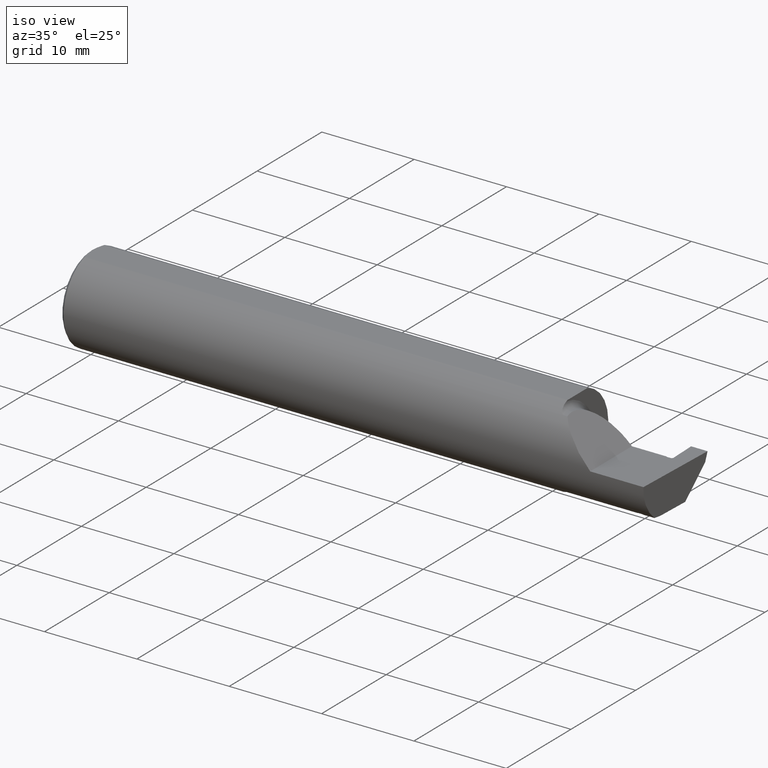
[diagram: clean part render]
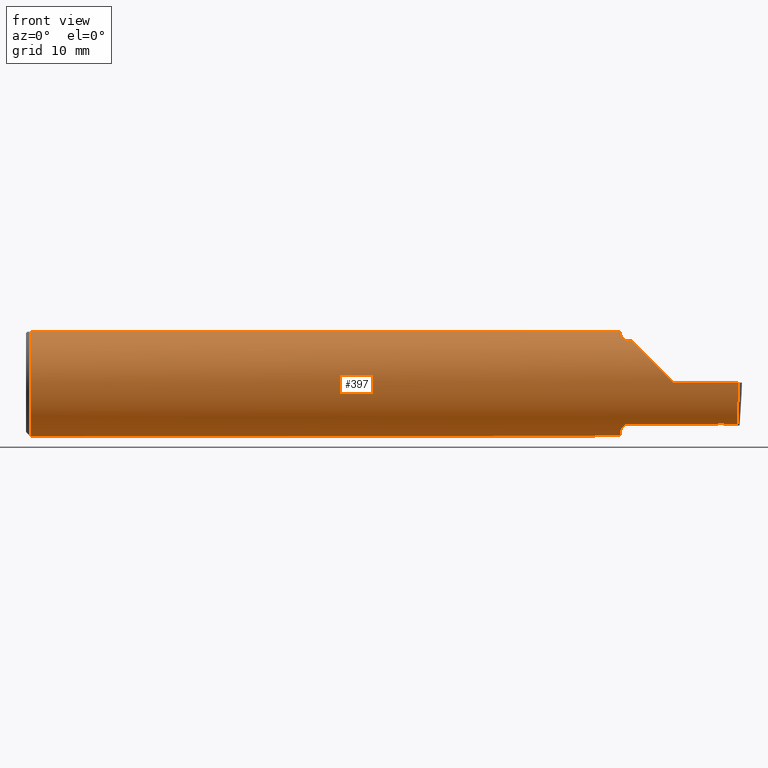
[diagram: tour spotlight — one face highlighted and labeled with its STEP entity id]
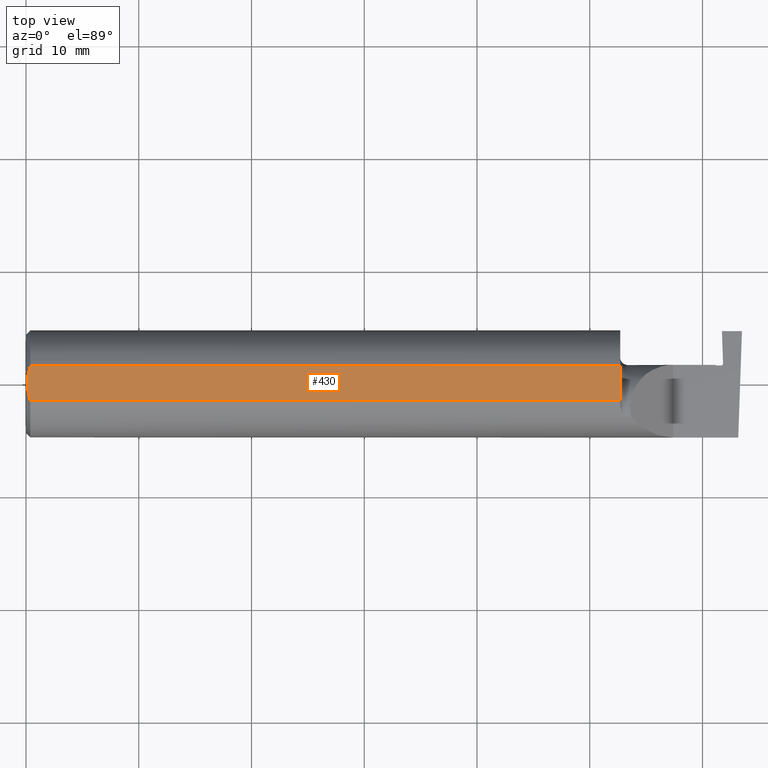
[diagram: tour spotlight — one face highlighted and labeled with its STEP entity id]
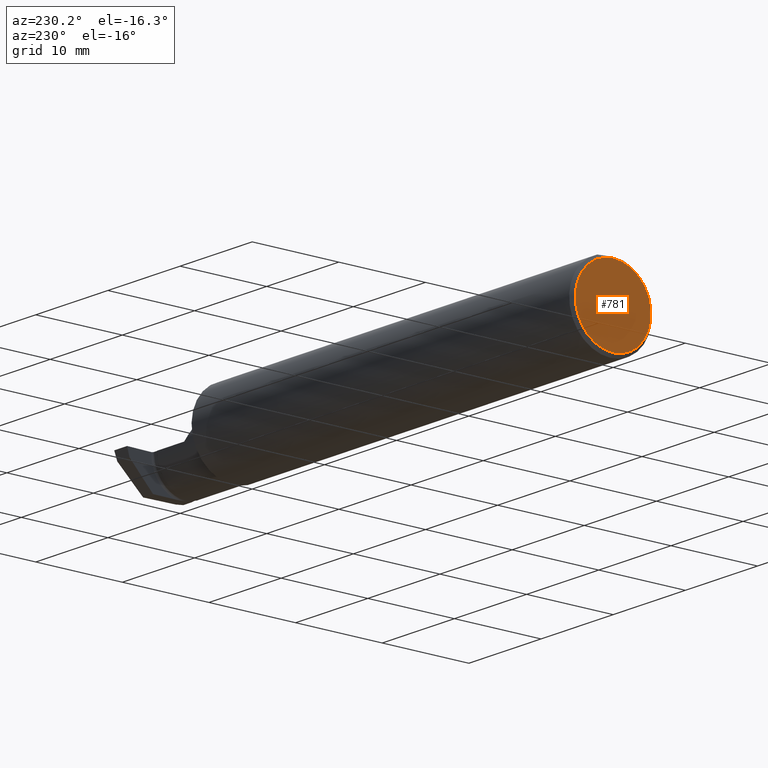
[diagram: tour spotlight — one face highlighted and labeled with its STEP entity id]
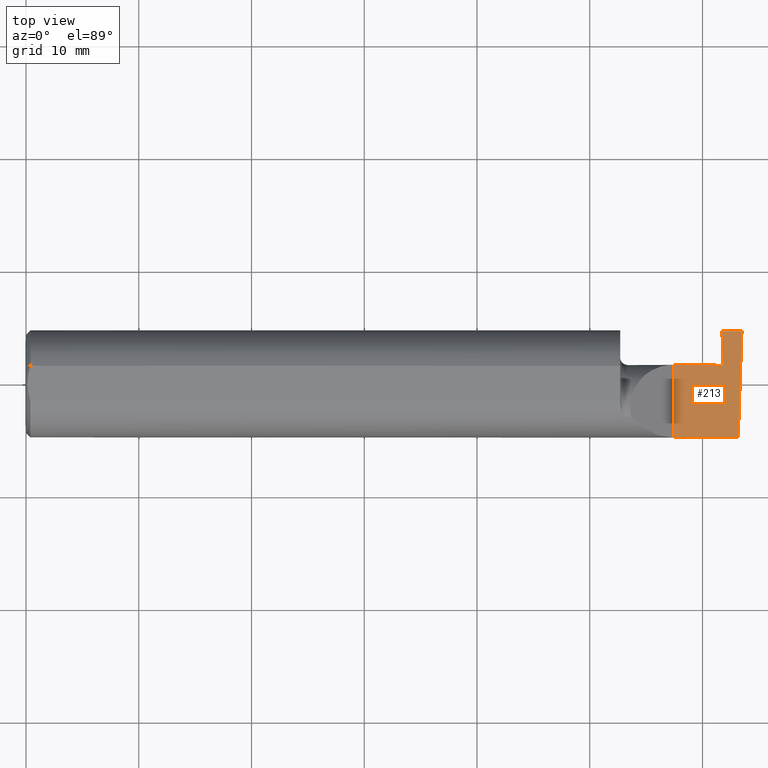
[diagram: tour spotlight — one face highlighted and labeled with its STEP entity id]
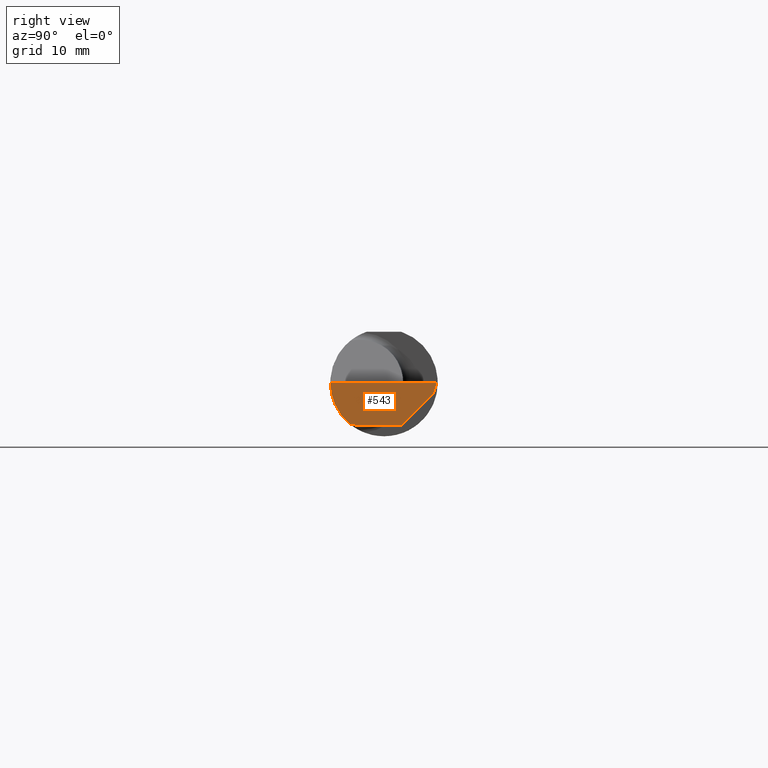
[diagram: tour spotlight — one face highlighted and labeled with its STEP entity id]
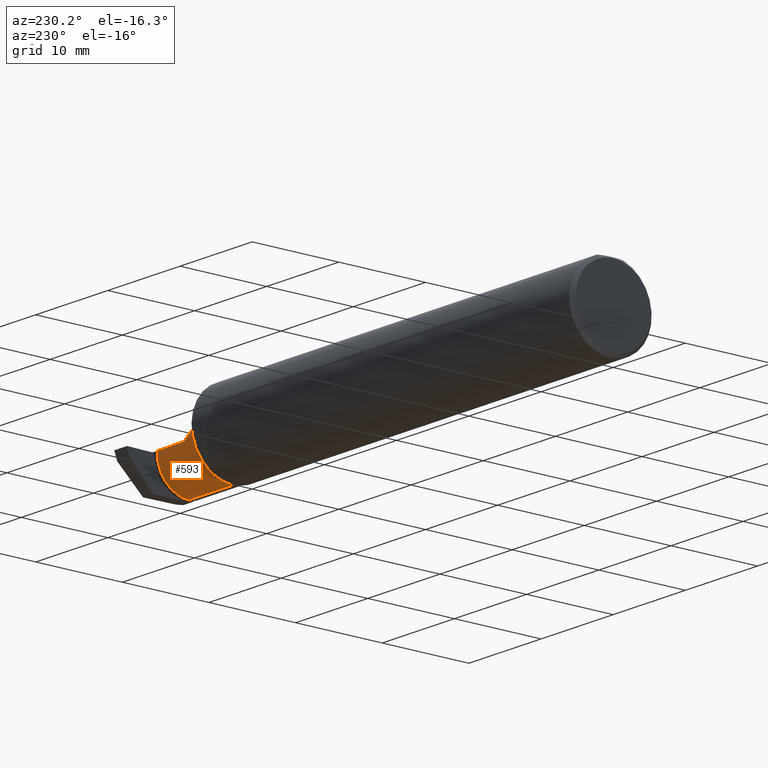
[diagram: tour spotlight — one face highlighted and labeled with its STEP entity id]
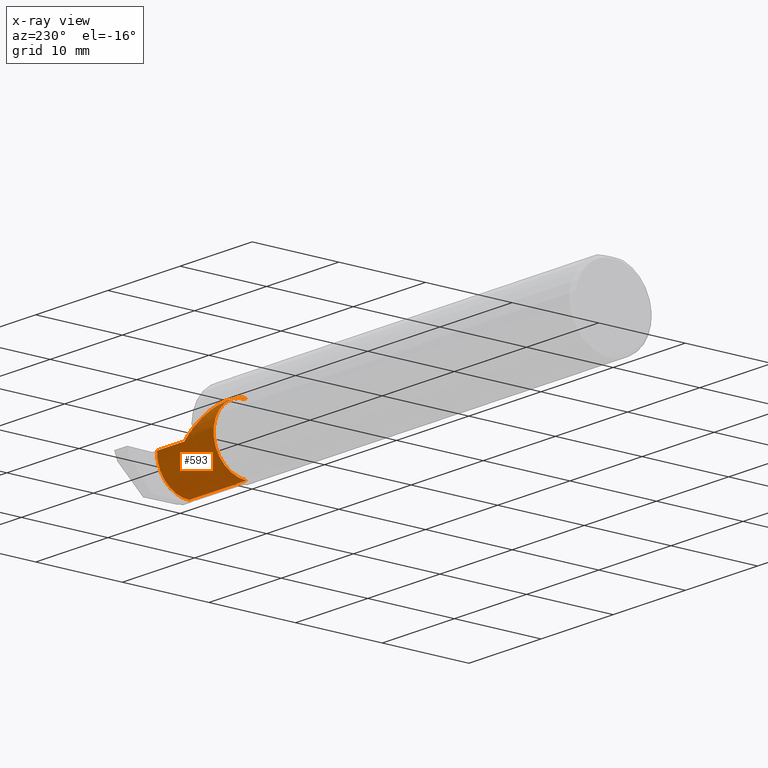
[diagram: x-ray of the same camera — body ghosted, this tour face saturated]
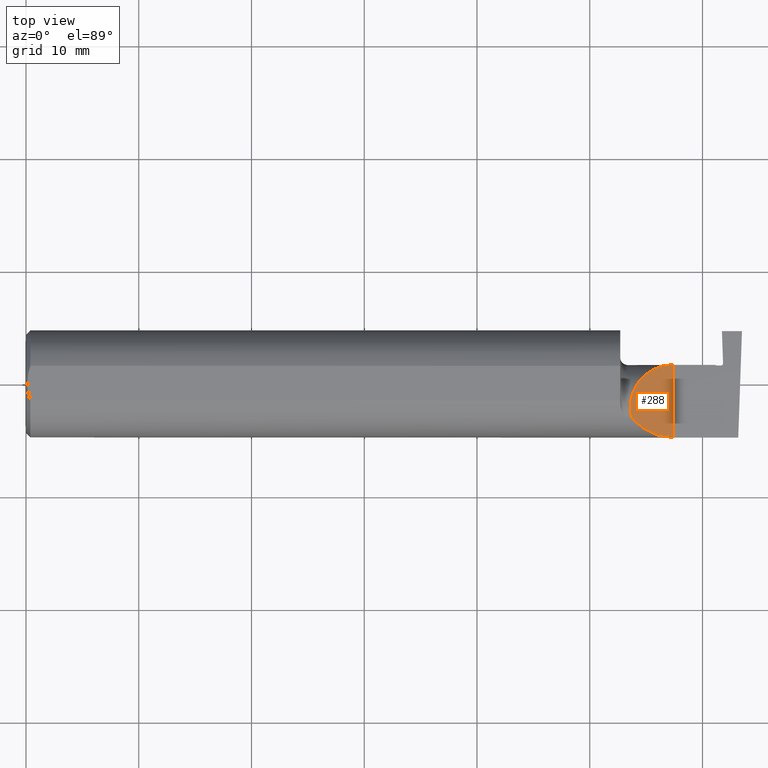
[diagram: tour spotlight — one face highlighted and labeled with its STEP entity id]
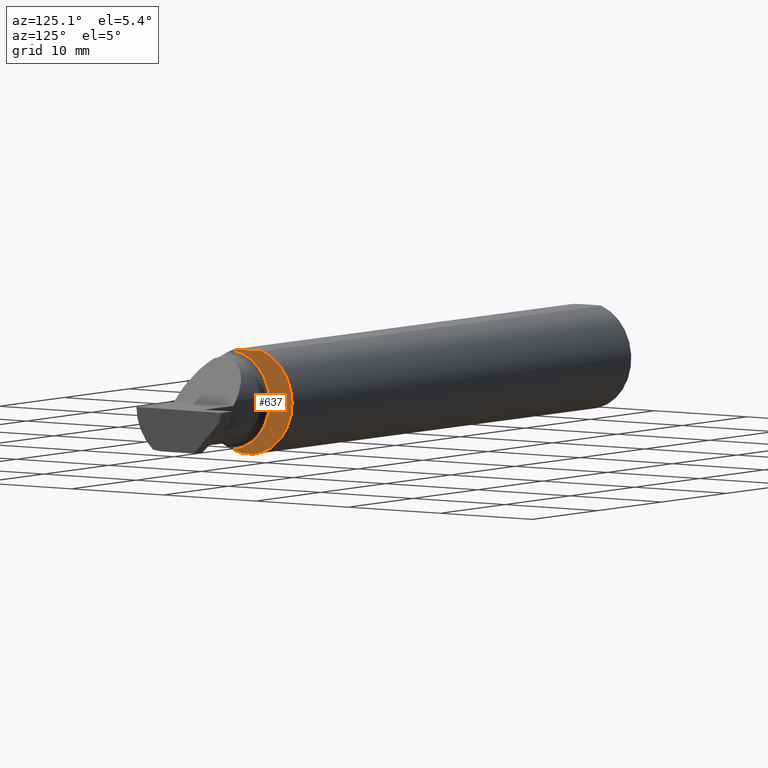
[diagram: tour spotlight — one face highlighted and labeled with its STEP entity id]
A machine part: a face-by-face anatomy tour. The part has 23 B-rep faces; the first image is the clean iso view, then the 8 largest visible faces are spotlighted one at a time (largest first), each with its STEP entity span.

Face 1 — front view, entity #397. In plain terms, the highlighted cylindrical surface (partial cylindrical patch) has radius 4.7587 mm, axis along (-1, -0, -0).
Definition (entity closure, byte-faithful):
#4 = CARTESIAN_POINT ( 'NONE',  ( 2.415025643755632334, -0.1199513252084595388, -0.1439156074952760989 ) ) ;
#10 = CARTESIAN_POINT ( 'NONE',  ( 2.086319809340846820, -0.1102629523538395662, 0.1514982751257170079 ) ) ;
#17 = ORIENTED_EDGE ( 'NONE', *, *, #347, .T. ) ;
#24 = ORIENTED_EDGE ( 'NONE', *, *, #581, .F. ) ;
#25 = CARTESIAN_POINT ( 'NONE',  ( 2.414567480718159853, -0.1190606946498137392, -0.1446579336240403357 ) ) ;
#39 = B_SPLINE_CURVE_WITH_KNOTS ( 'NONE', 3,
 ( #339, #425, #998, #661 ),
 .UNSPECIFIED., .F., .F.,
 ( 4, 4 ),
 ( 4.423516731080786679E-05, 0.0004561457252213464405 ),
 .UNSPECIFIED. ) ;
#51 = VERTEX_POINT ( 'NONE', #137 ) ;
#57 = EDGE_CURVE ( 'NONE', #225, #591, #386, .T. ) ;
#62 = CARTESIAN_POINT ( 'NONE',  ( 2.419253572807317454, -0.1202068112934516347, -0.1437023751129178628 ) ) ;
#65 = CARTESIAN_POINT ( 'NONE',  ( 2.075000000000000178, 0.06039039658754216666, 0.1773499999999999799 ) ) ;
#66 = CARTESIAN_POINT ( 'NONE',  ( 2.077380638915944822, -0.09060738690120602457, -0.1640321561807271400 ) ) ;
#70 = DIRECTION ( 'NONE',  ( 1.000000000000000000, 0.000000000000000000, 0.000000000000000000 ) ) ;
#75 = CARTESIAN_POINT ( 'NONE',  ( 2.076612951569643872, -0.08702537370779848958, -0.1659621904011593096 ) ) ;
#82 = EDGE_CURVE ( 'NONE', #649, #729, #923, .T. ) ;
#88 = CARTESIAN_POINT ( 'NONE',  ( 2.433211040278874027, -0.1210445122820193870, -0.1429974072683145581 ) ) ;
#92 = CARTESIAN_POINT ( 'NONE',  ( 2.413647455008648635, -0.1172600179964005812, -0.1461167706989303372 ) ) ;
#106 = CARTESIAN_POINT ( 'NONE',  ( 2.100000000000000089, -0.1172600179964007061, -0.1461167706989303094 ) ) ;
#114 = CARTESIAN_POINT ( 'NONE',  ( 2.075000000000000178, -0.07359296612170559970, -0.1723769398647691520 ) ) ;
#132 = CARTESIAN_POINT ( 'NONE',  ( 2.487009473749072441, -0.1873499999999999055, 0.000000000000000000 ) ) ;
#137 = CARTESIAN_POINT ( 'NONE',  ( 2.076062863587533780, -0.08334999999998812803, 0.1677879614275171183 ) ) ;
#141 = EDGE_CURVE ( 'NONE', #463, #1036, #822, .T. ) ;
#142 = EDGE_CURVE ( 'NONE', #241, #51, #39, .T. ) ;
#145 = CARTESIAN_POINT ( 'NONE',  ( 2.075000000000000178, 0.000000000000000000, 0.000000000000000000 ) ) ;
#152 = CIRCLE ( 'NONE', #521, 0.1873499999999999888 ) ;
#153 = DIRECTION ( 'NONE',  ( 0.000000000000000000, 0.000000000000000000, 1.000000000000000000 ) ) ;
#160 = CARTESIAN_POINT ( 'NONE',  ( 2.437191615192690008, -0.1172600179964005951, -0.1461167706989303650 ) ) ;
#167 = DIRECTION ( 'NONE',  ( -1.000000000000000000, -0.000000000000000000, -0.000000000000000000 ) ) ;
#173 = ORIENTED_EDGE ( 'NONE', *, *, #916, .F. ) ;
#177 = ORIENTED_EDGE ( 'NONE', *, *, #287, .T. ) ;
#212 = ORIENTED_EDGE ( 'NONE', *, *, #968, .F. ) ;
#221 = DIRECTION ( 'NONE',  ( -1.000000000000000000, -0.000000000000000000, -0.000000000000000000 ) ) ;
#223 = CARTESIAN_POINT ( 'NONE',  ( 2.427709559448256282, -0.1207152476655361933, -0.1432754392108021024 ) ) ;
#225 = VERTEX_POINT ( 'NONE', #630 ) ;
#229 = VERTEX_POINT ( 'NONE', #954 ) ;
#237 = ORIENTED_EDGE ( 'NONE', *, *, #324, .T. ) ;
#239 = EDGE_CURVE ( 'NONE', #229, #422, #274, .T. ) ;
#241 = VERTEX_POINT ( 'NONE', #1009 ) ;
#243 = CARTESIAN_POINT ( 'NONE',  ( 2.485494735025390867, -0.1873500000000000443, -0.05781030015605120170 ) ) ;
#245 = CARTESIAN_POINT ( 'NONE',  ( 2.431937607526561962, -0.1209683846348563324, -0.1430617783296203871 ) ) ;
#247 = ORIENTED_EDGE ( 'NONE', *, *, #57, .F. ) ;
#255 = B_SPLINE_CURVE_WITH_KNOTS ( 'NONE', 3,
 ( #431, #25, #505, #92 ),
 .UNSPECIFIED., .F., .F.,
 ( 4, 4 ),
 ( 4.944722691628275482E-18, 9.499326669124415158E-05 ),
 .UNSPECIFIED. ) ;
#261 = CIRCLE ( 'NONE', #860, 0.1873499999999999888 ) ;
#263 = ORIENTED_EDGE ( 'NONE', *, *, #712, .F. ) ;
#266 = CARTESIAN_POINT ( 'NONE',  ( 2.076062863587535556, -0.08334999999999985476, -0.1677879614275112896 ) ) ;
#273 = CARTESIAN_POINT ( 'NONE',  ( 2.431937607526561962, -0.1209683846348563324, -0.1430617783296203871 ) ) ;
#274 = LINE ( 'NONE', #686, #367 ) ;
#281 = EDGE_CURVE ( 'NONE', #565, #790, #652, .T. ) ;
#287 = EDGE_CURVE ( 'NONE', #1011, #591, #561, .T. ) ;
#292 = CARTESIAN_POINT ( 'NONE',  ( 2.092163414264744503, -0.1151183835841406711, -0.1478135984872520903 ) ) ;
#294 = DIRECTION ( 'NONE',  ( 1.000000000000000000, 0.000000000000000000, 0.000000000000000000 ) ) ;
#310 = B_SPLINE_CURVE_WITH_KNOTS ( 'NONE', 3,
 ( #745, #575, #423, #837, #10, #901, #493, #592 ),
 .UNSPECIFIED., .F., .F.,
 ( 4, 2, 2, 4 ),
 ( 0.0004561457252213464405, 0.001084815134961806529, 0.001399149839832032182, 0.001713484544702258052 ),
 .UNSPECIFIED. ) ;
#319 = EDGE_CURVE ( 'NONE', #848, #463, #874, .T. ) ;
#321 = ORIENTED_EDGE ( 'NONE', *, *, #82, .F. ) ;
#324 = EDGE_CURVE ( 'NONE', #574, #1011, #897, .T. ) ;
#339 = CARTESIAN_POINT ( 'NONE',  ( 2.075000000000000178, -0.06851976604679065053, 0.1743704796142198643 ) ) ;
#347 = EDGE_CURVE ( 'NONE', #229, #574, #664, .T. ) ;
#348 = CARTESIAN_POINT ( 'NONE',  ( 2.075346246588685162, -0.07856197451716391555, -0.1701664510438047062 ) ) ;
#364 = DIRECTION ( 'NONE',  ( -1.000000000000000000, -0.000000000000000000, -0.000000000000000000 ) ) ;
#367 = VECTOR ( 'NONE', #787, 39.37007874015748143 ) ;
#378 = CARTESIAN_POINT ( 'NONE',  ( 2.097868998470238555, -0.1172600179964006228, -0.1461167706989303372 ) ) ;
#386 = LINE ( 'NONE', #955, #554 ) ;
#389 = DIRECTION ( 'NONE',  ( 0.000000000000000000, 0.000000000000000000, 1.000000000000000000 ) ) ;
#391 = CARTESIAN_POINT ( 'NONE',  ( 2.423481544657466902, -0.1204614523309306823, -0.1434889842348607558 ) ) ;
#397 = ADVANCED_FACE ( 'NONE', ( #567 ), #798, .T. ) ;
#399 = DIRECTION ( 'NONE',  ( 0.000000000000000000, 0.000000000000000000, -1.000000000000000000 ) ) ;
#402 = ORIENTED_EDGE ( 'NONE', *, *, #749, .F. ) ;
#404 = VECTOR ( 'NONE', #1032, 39.37007874015748143 ) ;
#405 = CARTESIAN_POINT ( 'NONE',  ( 2.485002117657001186, -0.1623470442677541481, -0.1099340280425338545 ) ) ;
#409 = EDGE_CURVE ( 'NONE', #1036, #613, #261, .T. ) ;
#417 = CARTESIAN_POINT ( 'NONE',  ( 0.000000000000000000, 0.06039039658753697637, 0.1773499999999999799 ) ) ;
#422 = VERTEX_POINT ( 'NONE', #803 ) ;
#423 = CARTESIAN_POINT ( 'NONE',  ( 2.079075010165367665, -0.09778159395695856793, 0.1599914159748310749 ) ) ;
#425 = CARTESIAN_POINT ( 'NONE',  ( 2.074999999999999734, -0.07360907839729495528, 0.1723706084642000758 ) ) ;
#431 = CARTESIAN_POINT ( 'NONE',  ( 2.415025643755632334, -0.1199513252084595388, -0.1439156074952760989 ) ) ;
#444 = CARTESIAN_POINT ( 'NONE',  ( 0.01499999999999999944, 0.000000000000000000, -0.1873499999999999888 ) ) ;
#451 = VECTOR ( 'NONE', #364, 39.37007874015748143 ) ;
#452 = AXIS2_PLACEMENT_3D ( 'NONE', #145, #887, #399 ) ;
#455 = ORIENTED_EDGE ( 'NONE', *, *, #281, .F. ) ;
#458 = CARTESIAN_POINT ( 'NONE',  ( 2.421367558809794485, -0.1203341318168529295, -0.1435956796699827120 ) ) ;
#461 = CARTESIAN_POINT ( 'NONE',  ( 2.079475235432781677, -0.09757364237049405420, -0.1599863467203318512 ) ) ;
#463 = VERTEX_POINT ( 'NONE', #716 ) ;
#464 = CARTESIAN_POINT ( 'NONE',  ( 2.436071521463064382, -0.1190226352269122684, -0.1446876240948564152 ) ) ;
#475 = CARTESIAN_POINT ( 'NONE',  ( 0.000000000000000000, 0.000000000000000000, 0.000000000000000000 ) ) ;
#476 = EDGE_CURVE ( 'NONE', #790, #785, #711, .T. ) ;
#478 = ORIENTED_EDGE ( 'NONE', *, *, #142, .F. ) ;
#482 = CARTESIAN_POINT ( 'NONE',  ( 2.076062863587535556, -0.08334999999999985476, -0.1677879614275112896 ) ) ;
#485 = CARTESIAN_POINT ( 'NONE',  ( 2.434381869402744147, -0.1204604648549747192, -0.1434927617320695126 ) ) ;
#491 = CARTESIAN_POINT ( 'NONE',  ( 2.417139601127168191, -0.1200792089768669552, -0.1438090184479859646 ) ) ;
#493 = CARTESIAN_POINT ( 'NONE',  ( 2.095724556588812515, -0.1172600179964061046, 0.1461167706989260906 ) ) ;
#501 = VECTOR ( 'NONE', #739, 39.37007874015748143 ) ;
#505 = CARTESIAN_POINT ( 'NONE',  ( 2.414108026673423613, -0.1181635260081538991, -0.1453916974221852454 ) ) ;
#515 = B_SPLINE_CURVE_WITH_KNOTS ( 'NONE', 3,
 ( #160, #558, #464, #485, #88, #566 ),
 .UNSPECIFIED., .F., .F.,
 ( 4, 2, 4 ),
 ( 0.0002908325178989604079, 0.0003847762233270430330, 0.0004787199287551257123 ),
 .UNSPECIFIED. ) ;
#518 = ORIENTED_EDGE ( 'NONE', *, *, #885, .F. ) ;
#521 = AXIS2_PLACEMENT_3D ( 'NONE', #633, #1031, #389 ) ;
#531 = CARTESIAN_POINT ( 'NONE',  ( 2.113883229301070532, -0.1172600179964009143, 0.1461167706989301707 ) ) ;
#540 = CARTESIAN_POINT ( 'NONE',  ( 2.415025643755632334, -0.1199513252084595388, -0.1439156074952760989 ) ) ;
#544 = CARTESIAN_POINT ( 'NONE',  ( 2.084228130464466755, -0.1072797540790367682, -0.1536407449207396192 ) ) ;
#554 = VECTOR ( 'NONE', #294, 39.37007874015748143 ) ;
#558 = CARTESIAN_POINT ( 'NONE',  ( 2.436688612316453728, -0.1181607895145486420, -0.1453938934828282736 ) ) ;
#561 =( BOUNDED_CURVE ( )  B_SPLINE_CURVE ( 3, ( #937, #680, #1003, #531 ),
 .UNSPECIFIED., .F., .T. ) 
 B_SPLINE_CURVE_WITH_KNOTS ( ( 4, 4 ),
 ( 4.712388980384688786, 5.606916381293135743 ),
 .UNSPECIFIED. ) 
 CURVE ( )  GEOMETRIC_REPRESENTATION_ITEM ( )  RATIONAL_B_SPLINE_CURVE ( ( 1.000000000000000000, 0.9344226172588803170, 0.9344226172588803170, 1.000000000000000000 ) ) 
 REPRESENTATION_ITEM ( '' )  );
#563 = EDGE_LOOP ( 'NONE', ( #961, #17, #237, #177, #247, #173, #478, #263, #842, #455, #956, #212, #886, #569, #889, #24, #518, #321, #402 ) ) ;
#565 = VERTEX_POINT ( 'NONE', #444 ) ;
#566 = CARTESIAN_POINT ( 'NONE',  ( 2.431937607526561962, -0.1209683846348563324, -0.1430617783296203871 ) ) ;
#567 = FACE_OUTER_BOUND ( 'NONE', #563, .T. ) ;
#569 = ORIENTED_EDGE ( 'NONE', *, *, #141, .F. ) ;
#573 = CARTESIAN_POINT ( 'NONE',  ( 2.430528251762439584, -0.1208841310869968044, -0.1431330203881445162 ) ) ;
#574 = VERTEX_POINT ( 'NONE', #132 ) ;
#575 = CARTESIAN_POINT ( 'NONE',  ( 2.077158970028690099, -0.09067355718685699006, 0.1641499263364886996 ) ) ;
#581 = EDGE_CURVE ( 'NONE', #815, #848, #1017, .T. ) ;
#591 = VERTEX_POINT ( 'NONE', #778 ) ;
#592 = CARTESIAN_POINT ( 'NONE',  ( 2.100000000000000089, -0.1172600179964007616, 0.1461167706989303094 ) ) ;
#595 = CARTESIAN_POINT ( 'NONE',  ( 2.075000000000000178, -0.06851976604679065053, -0.1743704796142198643 ) ) ;
#613 = VERTEX_POINT ( 'NONE', #65 ) ;
#622 = CARTESIAN_POINT ( 'NONE',  ( 2.090551048069661189, -0.1140002044565610884, -0.1486821290834930143 ) ) ;
#624 = AXIS2_PLACEMENT_3D ( 'NONE', #475, #167, #153 ) ;
#630 = CARTESIAN_POINT ( 'NONE',  ( 2.100000000000000089, -0.1172600179964007616, 0.1461167706989303094 ) ) ;
#633 = CARTESIAN_POINT ( 'NONE',  ( 0.01499999999999999944, 0.000000000000000000, 0.000000000000000000 ) ) ;
#634 = CARTESIAN_POINT ( 'NONE',  ( 3.749399456654646757E-32, -0.1873499999999999888, 3.061616997868384127E-16 ) ) ;
#639 = CARTESIAN_POINT ( 'NONE',  ( 0.01499999999999999944, -0.06039039658753697637, 0.1773499999999999799 ) ) ;
#643 = CARTESIAN_POINT ( 'NONE',  ( 2.413647455008648635, -0.1172600179964005812, -0.1461167706989303372 ) ) ;
#649 = VERTEX_POINT ( 'NONE', #273 ) ;
#652 = CIRCLE ( 'NONE', #947, 0.1873499999999999888 ) ;
#654 = LINE ( 'NONE', #417, #501 ) ;
#661 = CARTESIAN_POINT ( 'NONE',  ( 2.076062863587533780, -0.08334999999998812803, 0.1677879614275171183 ) ) ;
#664 =( BOUNDED_CURVE ( )  B_SPLINE_CURVE ( 3, ( #728, #405, #243, #879 ),
 .UNSPECIFIED., .F., .F. ) 
 B_SPLINE_CURVE_WITH_KNOTS ( ( 4, 4 ),
 ( 6.032366188922103412, 6.926893589830550368 ),
 .UNSPECIFIED. ) 
 CURVE ( )  GEOMETRIC_REPRESENTATION_ITEM ( )  RATIONAL_B_SPLINE_CURVE ( ( 1.000000000000000000, 0.9344226172588803170, 0.9344226172588803170, 1.000000000000000000 ) ) 
 REPRESENTATION_ITEM ( '' )  );
#674 = VERTEX_POINT ( 'NONE', #866 ) ;
#680 = CARTESIAN_POINT ( 'NONE',  ( 2.202189699843949189, -0.1873500000000000443, 0.05781030015605096578 ) ) ;
#686 = CARTESIAN_POINT ( 'NONE',  ( 2.262500000000000178, -0.1172600179964007061, -0.1461167706989303094 ) ) ;
#690 = CARTESIAN_POINT ( 'NONE',  ( 0.01499999999999999944, 0.000000000000000000, 0.000000000000000000 ) ) ;
#711 = LINE ( 'NONE', #807, #404 ) ;
#712 = EDGE_CURVE ( 'NONE', #785, #241, #1026, .T. ) ;
#716 = CARTESIAN_POINT ( 'NONE',  ( 2.076062863587535556, -0.08334999999999985476, -0.1677879614275112896 ) ) ;
#728 = CARTESIAN_POINT ( 'NONE',  ( 2.485628535317038867, -0.1172600179964007061, -0.1461167706989303094 ) ) ;
#729 = VERTEX_POINT ( 'NONE', #4 ) ;
#739 = DIRECTION ( 'NONE',  ( -1.000000000000000000, -0.000000000000000000, -0.000000000000000000 ) ) ;
#743 = EDGE_CURVE ( 'NONE', #674, #565, #152, .T. ) ;
#745 = CARTESIAN_POINT ( 'NONE',  ( 2.076062863587533780, -0.08334999999998812803, 0.1677879614275171183 ) ) ;
#749 = EDGE_CURVE ( 'NONE', #422, #649, #515, .T. ) ;
#778 = CARTESIAN_POINT ( 'NONE',  ( 2.113883229301070532, -0.1172600179964009143, 0.1461167706989301707 ) ) ;
#779 = CARTESIAN_POINT ( 'NONE',  ( 2.100000000000000089, -0.1172600179964007061, -0.1461167706989303094 ) ) ;
#783 = CARTESIAN_POINT ( 'NONE',  ( 2.260000000000000231, -0.1873499999999999888, 2.939152317953647352E-17 ) ) ;
#785 = VERTEX_POINT ( 'NONE', #883 ) ;
#787 = DIRECTION ( 'NONE',  ( -1.000000000000000000, -0.000000000000000000, -0.000000000000000000 ) ) ;
#790 = VERTEX_POINT ( 'NONE', #639 ) ;
#798 = CYLINDRICAL_SURFACE ( 'NONE', #624, 0.1873499999999999888 ) ;
#803 = CARTESIAN_POINT ( 'NONE',  ( 2.437191615192690008, -0.1172600179964005951, -0.1461167706989303650 ) ) ;
#807 = CARTESIAN_POINT ( 'NONE',  ( 0.000000000000000000, -0.06039039658753697637, 0.1773499999999999799 ) ) ;
#814 = DIRECTION ( 'NONE',  ( 0.000000000000000000, 0.000000000000000000, -1.000000000000000000 ) ) ;
#815 = VERTEX_POINT ( 'NONE', #643 ) ;
#822 = B_SPLINE_CURVE_WITH_KNOTS ( 'NONE', 3,
 ( #266, #348, #114, #595 ),
 .UNSPECIFIED., .F., .F.,
 ( 4, 4 ),
 ( 0.001278539404338873775, 0.001694873732696217669 ),
 .UNSPECIFIED. ) ;
#837 = CARTESIAN_POINT ( 'NONE',  ( 2.084249444250374061, -0.1073163636891284328, 0.1536158790136666064 ) ) ;
#842 = ORIENTED_EDGE ( 'NONE', *, *, #476, .F. ) ;
#848 = VERTEX_POINT ( 'NONE', #106 ) ;
#856 = CARTESIAN_POINT ( 'NONE',  ( 2.075000000000000178, -0.06851976604679065053, -0.1743704796142198643 ) ) ;
#860 = AXIS2_PLACEMENT_3D ( 'NONE', #1039, #70, #814 ) ;
#866 = CARTESIAN_POINT ( 'NONE',  ( 0.01499999999999756042, 0.06039039658754215278, 0.1773499999999999799 ) ) ;
#867 = CARTESIAN_POINT ( 'NONE',  ( 2.080806801261507299, -0.1009700360460131785, -0.1578590382459147679 ) ) ;
#874 = B_SPLINE_CURVE_WITH_KNOTS ( 'NONE', 3,
 ( #779, #378, #1019, #292, #622, #948, #544, #867, #461, #66, #75, #482 ),
 .UNSPECIFIED., .F., .F.,
 ( 4, 2, 2, 2, 2, 4 ),
 ( 1.967976973658110826E-07, 0.0001599896235275542170, 0.0003197824493577425937, 0.0006393681010181188592, 0.0009589537526784962631, 0.001278539404338873775 ),
 .UNSPECIFIED. ) ;
#875 = CARTESIAN_POINT ( 'NONE',  ( 2.425595544866169906, -0.1205884910542044941, -0.1433822366899404344 ) ) ;
#879 = CARTESIAN_POINT ( 'NONE',  ( 2.487009473749072441, -0.1873499999999999055, 0.000000000000000000 ) ) ;
#883 = CARTESIAN_POINT ( 'NONE',  ( 2.075000000000000178, -0.06039039658753699025, 0.1773499999999999799 ) ) ;
#885 = EDGE_CURVE ( 'NONE', #729, #815, #255, .T. ) ;
#886 = ORIENTED_EDGE ( 'NONE', *, *, #409, .F. ) ;
#887 = DIRECTION ( 'NONE',  ( 1.000000000000000000, 0.000000000000000000, 0.000000000000000000 ) ) ;
#889 = ORIENTED_EDGE ( 'NONE', *, *, #319, .F. ) ;
#892 = VECTOR ( 'NONE', #958, 39.37007874015748143 ) ;
#897 = LINE ( 'NONE', #634, #892 ) ;
#901 = CARTESIAN_POINT ( 'NONE',  ( 2.091924463282975211, -0.1152182125075826846, 0.1477647100440766526 ) ) ;
#916 = EDGE_CURVE ( 'NONE', #51, #225, #310, .T. ) ;
#923 = B_SPLINE_CURVE_WITH_KNOTS ( 'NONE', 3,
 ( #245, #573, #944, #223, #875, #391, #458, #62, #491, #540 ),
 .UNSPECIFIED., .F., .F.,
 ( 4, 3, 3, 4 ),
 ( 0.000000000000000000, 0.0001077215163388009738, 0.0002693038030039463025, 0.0004308861015020489069 ),
 .UNSPECIFIED. ) ;
#937 = CARTESIAN_POINT ( 'NONE',  ( 2.260000000000000231, -0.1873499999999999888, 2.939152317953647352E-17 ) ) ;
#944 = CARTESIAN_POINT ( 'NONE',  ( 2.429118902404112657, -0.1207997520671625219, -0.1432042408963712377 ) ) ;
#947 = AXIS2_PLACEMENT_3D ( 'NONE', #690, #221, #1013 ) ;
#948 = CARTESIAN_POINT ( 'NONE',  ( 2.086340974786207170, -0.1102890168945986904, -0.1514792188789465255 ) ) ;
#954 = CARTESIAN_POINT ( 'NONE',  ( 2.485628535317038867, -0.1172600179964007061, -0.1461167706989303094 ) ) ;
#955 = CARTESIAN_POINT ( 'NONE',  ( 2.262500000000000178, -0.1172600179964007061, 0.1461167706989303094 ) ) ;
#956 = ORIENTED_EDGE ( 'NONE', *, *, #743, .F. ) ;
#958 = DIRECTION ( 'NONE',  ( -1.000000000000000000, -0.000000000000000000, -0.000000000000000000 ) ) ;
#961 = ORIENTED_EDGE ( 'NONE', *, *, #239, .F. ) ;
#968 = EDGE_CURVE ( 'NONE', #613, #674, #654, .T. ) ;
#998 = CARTESIAN_POINT ( 'NONE',  ( 2.075344683557281300, -0.07855153123406179161, 0.1701716388274757685 ) ) ;
#1002 = CARTESIAN_POINT ( 'NONE',  ( 2.262500000000000178, -0.1172600179964007061, -0.1461167706989303094 ) ) ;
#1003 = CARTESIAN_POINT ( 'NONE',  ( 2.150065971957467070, -0.1623470442677542591, 0.1099340280425335908 ) ) ;
#1009 = CARTESIAN_POINT ( 'NONE',  ( 2.075000000000000178, -0.06851976604679065053, 0.1743704796142198643 ) ) ;
#1011 = VERTEX_POINT ( 'NONE', #783 ) ;
#1013 = DIRECTION ( 'NONE',  ( 0.000000000000000000, 0.000000000000000000, 1.000000000000000000 ) ) ;
#1017 = LINE ( 'NONE', #1002, #451 ) ;
#1019 = CARTESIAN_POINT ( 'NONE',  ( 2.095804171164107554, -0.1167508198888949494, -0.1465276362740037530 ) ) ;
#1026 = CIRCLE ( 'NONE', #452, 0.1873499999999999888 ) ;
#1031 = DIRECTION ( 'NONE',  ( -1.000000000000000000, -0.000000000000000000, -0.000000000000000000 ) ) ;
#1032 = DIRECTION ( 'NONE',  ( 1.000000000000000000, 0.000000000000000000, 0.000000000000000000 ) ) ;
#1036 = VERTEX_POINT ( 'NONE', #856 ) ;
#1039 = CARTESIAN_POINT ( 'NONE',  ( 2.075000000000000178, 0.000000000000000000, 0.000000000000000000 ) ) ;

Face 2 — top view, entity #430. In plain terms, the highlighted planar face has unit normal (0, -0, 1).
Definition (entity closure, byte-faithful):
#22 = EDGE_CURVE ( 'NONE', #340, #790, #350, .T. ) ;
#65 = CARTESIAN_POINT ( 'NONE',  ( 2.075000000000000178, 0.06039039658754216666, 0.1773499999999999799 ) ) ;
#81 = CARTESIAN_POINT ( 'NONE',  ( 2.500000000000000000, -0.1873500000000000165, 0.1773499999999999799 ) ) ;
#84 = CARTESIAN_POINT ( 'NONE',  ( 0.01499999999999756042, 0.06039039658754215278, 0.1773499999999999799 ) ) ;
#89 = PLANE ( 'NONE',  #737 ) ;
#163 = B_SPLINE_CURVE_WITH_KNOTS ( 'NONE', 3,
 ( #84, #871, #220, #726, #226, #326 ),
 .UNSPECIFIED., .F., .F.,
 ( 4, 2, 4 ),
 ( 0.004207325536406422359, 0.004979129323161655095, 0.005750933109916887831 ),
 .UNSPECIFIED. ) ;
#220 = CARTESIAN_POINT ( 'NONE',  ( 0.009346310357820472939, 0.04072930668827419443, 0.1773500000000000354 ) ) ;
#226 = CARTESIAN_POINT ( 'NONE',  ( 0.004999999999999839642, 0.01027925662263861305, 0.1773499999999999799 ) ) ;
#251 = ORIENTED_EDGE ( 'NONE', *, *, #694, .T. ) ;
#306 = CARTESIAN_POINT ( 'NONE',  ( 0.004999999999999833571, -0.01026662907944655458, 0.1773499999999999521 ) ) ;
#311 = CARTESIAN_POINT ( 'NONE',  ( 0.009318557230853204490, -0.04061090184993776386, 0.1773499999999999799 ) ) ;
#326 = CARTESIAN_POINT ( 'NONE',  ( 0.004999999999999835305, 2.941982542510190671E-17, 0.1773499999999999799 ) ) ;
#340 = VERTEX_POINT ( 'NONE', #572 ) ;
#350 = B_SPLINE_CURVE_WITH_KNOTS ( 'NONE', 3,
 ( #462, #306, #818, #311, #626, #1028 ),
 .UNSPECIFIED., .F., .F.,
 ( 4, 2, 4 ),
 ( 0.005750933109916887831, 0.006521788775031543001, 0.007292644440146199038 ),
 .UNSPECIFIED. ) ;
#353 = EDGE_LOOP ( 'NONE', ( #801, #407, #551, #251, #1005 ) ) ;
#394 = FACE_OUTER_BOUND ( 'NONE', #353, .T. ) ;
#400 = DIRECTION ( 'NONE',  ( 1.000000000000000000, 0.000000000000000000, -0.000000000000000000 ) ) ;
#404 = VECTOR ( 'NONE', #1032, 39.37007874015748143 ) ;
#407 = ORIENTED_EDGE ( 'NONE', *, *, #780, .T. ) ;
#410 = DIRECTION ( 'NONE',  ( 0.000000000000000000, -0.000000000000000000, 1.000000000000000000 ) ) ;
#417 = CARTESIAN_POINT ( 'NONE',  ( 0.000000000000000000, 0.06039039658753697637, 0.1773499999999999799 ) ) ;
#430 = ADVANCED_FACE ( 'NONE', ( #394 ), #89, .T. ) ;
#462 = CARTESIAN_POINT ( 'NONE',  ( 0.004999999999999835305, 2.941982542510190671E-17, 0.1773499999999999799 ) ) ;
#476 = EDGE_CURVE ( 'NONE', #790, #785, #711, .T. ) ;
#479 = CARTESIAN_POINT ( 'NONE',  ( 2.075000000000000178, -0.1873500000000000165, 0.1773499999999999799 ) ) ;
#501 = VECTOR ( 'NONE', #739, 39.37007874015748143 ) ;
#551 = ORIENTED_EDGE ( 'NONE', *, *, #968, .T. ) ;
#552 = LINE ( 'NONE', #479, #894 ) ;
#572 = CARTESIAN_POINT ( 'NONE',  ( 0.004999999999999835305, 2.941982542510190671E-17, 0.1773499999999999799 ) ) ;
#613 = VERTEX_POINT ( 'NONE', #65 ) ;
#626 = CARTESIAN_POINT ( 'NONE',  ( 0.01186375298701897348, -0.05066077215909271098, 0.1773499999999999799 ) ) ;
#639 = CARTESIAN_POINT ( 'NONE',  ( 0.01499999999999999944, -0.06039039658753697637, 0.1773499999999999799 ) ) ;
#654 = LINE ( 'NONE', #417, #501 ) ;
#674 = VERTEX_POINT ( 'NONE', #866 ) ;
#694 = EDGE_CURVE ( 'NONE', #674, #340, #163, .T. ) ;
#711 = LINE ( 'NONE', #807, #404 ) ;
#726 = CARTESIAN_POINT ( 'NONE',  ( 0.005916828623699125177, 0.02060071390057613763, 0.1773499999999999799 ) ) ;
#737 = AXIS2_PLACEMENT_3D ( 'NONE', #81, #410, #400 ) ;
#739 = DIRECTION ( 'NONE',  ( -1.000000000000000000, -0.000000000000000000, -0.000000000000000000 ) ) ;
#780 = EDGE_CURVE ( 'NONE', #785, #613, #552, .T. ) ;
#785 = VERTEX_POINT ( 'NONE', #883 ) ;
#790 = VERTEX_POINT ( 'NONE', #639 ) ;
#801 = ORIENTED_EDGE ( 'NONE', *, *, #476, .T. ) ;
#806 = DIRECTION ( 'NONE',  ( -0.000000000000000000, 1.000000000000000000, 0.000000000000000000 ) ) ;
#807 = CARTESIAN_POINT ( 'NONE',  ( 0.000000000000000000, -0.06039039658753697637, 0.1773499999999999799 ) ) ;
#818 = CARTESIAN_POINT ( 'NONE',  ( 0.005896899252109314912, -0.02043863390046160924, 0.1773500000000000354 ) ) ;
#866 = CARTESIAN_POINT ( 'NONE',  ( 0.01499999999999756042, 0.06039039658754215278, 0.1773499999999999799 ) ) ;
#871 = CARTESIAN_POINT ( 'NONE',  ( 0.01185291896084217714, 0.05062716160312498437, 0.1773499999999999521 ) ) ;
#883 = CARTESIAN_POINT ( 'NONE',  ( 2.075000000000000178, -0.06039039658753699025, 0.1773499999999999799 ) ) ;
#894 = VECTOR ( 'NONE', #806, 39.37007874015748143 ) ;
#968 = EDGE_CURVE ( 'NONE', #613, #674, #654, .T. ) ;
#1005 = ORIENTED_EDGE ( 'NONE', *, *, #22, .T. ) ;
#1028 = CARTESIAN_POINT ( 'NONE',  ( 0.01499999999999999944, -0.06039039658753697637, 0.1773499999999999799 ) ) ;
#1032 = DIRECTION ( 'NONE',  ( 1.000000000000000000, 0.000000000000000000, 0.000000000000000000 ) ) ;

Face 3 — auxiliary view, entity #781. In plain terms, the highlighted planar face has unit normal (1, 0, 0).
Definition (entity closure, byte-faithful):
#68 = VERTEX_POINT ( 'NONE', #1021 ) ;
#74 = DIRECTION ( 'NONE',  ( 1.000000000000000000, 0.000000000000000000, 0.000000000000000000 ) ) ;
#187 = DIRECTION ( 'NONE',  ( 0.000000000000000000, 0.000000000000000000, 1.000000000000000000 ) ) ;
#215 = AXIS2_PLACEMENT_3D ( 'NONE', #816, #987, #187 ) ;
#283 = ORIENTED_EDGE ( 'NONE', *, *, #863, .T. ) ;
#317 = AXIS2_PLACEMENT_3D ( 'NONE', #797, #74, #393 ) ;
#333 = AXIS2_PLACEMENT_3D ( 'NONE', #905, #510, #734 ) ;
#393 = DIRECTION ( 'NONE',  ( 0.000000000000000000, 0.000000000000000000, -1.000000000000000000 ) ) ;
#438 = ORIENTED_EDGE ( 'NONE', *, *, #899, .T. ) ;
#510 = DIRECTION ( 'NONE',  ( -1.000000000000000000, -0.000000000000000000, -0.000000000000000000 ) ) ;
#608 = VERTEX_POINT ( 'NONE', #786 ) ;
#628 = EDGE_LOOP ( 'NONE', ( #438, #283 ) ) ;
#655 = CIRCLE ( 'NONE', #333, 0.1723499999999999754 ) ;
#734 = DIRECTION ( 'NONE',  ( 0.000000000000000000, 0.000000000000000000, 1.000000000000000000 ) ) ;
#781 = ADVANCED_FACE ( 'NONE', ( #802 ), #972, .F. ) ;
#786 = CARTESIAN_POINT ( 'NONE',  ( 0.000000000000000000, 0.000000000000000000, -0.1723499999999999754 ) ) ;
#797 = CARTESIAN_POINT ( 'NONE',  ( 0.000000000000000000, 0.000000000000000000, 0.000000000000000000 ) ) ;
#802 = FACE_OUTER_BOUND ( 'NONE', #628, .T. ) ;
#816 = CARTESIAN_POINT ( 'NONE',  ( 0.000000000000000000, 0.000000000000000000, 0.000000000000000000 ) ) ;
#863 = EDGE_CURVE ( 'NONE', #68, #608, #964, .T. ) ;
#899 = EDGE_CURVE ( 'NONE', #608, #68, #655, .T. ) ;
#905 = CARTESIAN_POINT ( 'NONE',  ( 0.000000000000000000, 0.000000000000000000, 0.000000000000000000 ) ) ;
#964 = CIRCLE ( 'NONE', #215, 0.1723499999999999754 ) ;
#972 = PLANE ( 'NONE',  #317 ) ;
#987 = DIRECTION ( 'NONE',  ( -1.000000000000000000, -0.000000000000000000, -0.000000000000000000 ) ) ;
#1021 = CARTESIAN_POINT ( 'NONE',  ( 0.000000000000000000, 2.202527268266524596E-17, 0.1723499999999999754 ) ) ;

Face 4 — top view, entity #213. In plain terms, the highlighted planar face has unit normal (-0, 0, -1).
Definition (entity closure, byte-faithful):
#3 = VERTEX_POINT ( 'NONE', #436 ) ;
#8 = CARTESIAN_POINT ( 'NONE',  ( 2.433937515934081031, 0.07189429647679029811, -3.539777193516762738E-11 ) ) ;
#23 = B_SPLINE_CURVE_WITH_KNOTS ( 'NONE', 1,
 ( #1008, #766 ),
 .UNSPECIFIED., .F., .F.,
 ( 2, 2 ),
 ( 6.214901063768139935E-15, 0.002865740601254404205 ),
 .UNSPECIFIED. ) ;
#132 = CARTESIAN_POINT ( 'NONE',  ( 2.487009473749072441, -0.1873499999999999055, 0.000000000000000000 ) ) ;
#135 = DIRECTION ( 'NONE',  ( -1.224646799147353700E-16, 0.000000000000000000, -1.000000000000000000 ) ) ;
#136 = EDGE_CURVE ( 'NONE', #667, #3, #980, .T. ) ;
#140 = DIRECTION ( 'NONE',  ( -1.000000000000000000, 0.000000000000000000, 1.224646799147353700E-16 ) ) ;
#181 = VECTOR ( 'NONE', #304, 39.37007874015748143 ) ;
#182 = ORIENTED_EDGE ( 'NONE', *, *, #727, .F. ) ;
#184 = CARTESIAN_POINT ( 'NONE',  ( 2.426941780145820626, 0.06464999999995924007, -4.790805369348902566E-11 ) ) ;
#213 = ADVANCED_FACE ( 'NONE', ( #605 ), #465, .F. ) ;
#227 = CARTESIAN_POINT ( 'NONE',  ( 2.434084614202312924, 0.06768195317418605750, -3.470413159382881337E-11 ) ) ;
#230 = LINE ( 'NONE', #720, #232 ) ;
#232 = VECTOR ( 'NONE', #791, 39.37007874015748854 ) ;
#236 = LINE ( 'NONE', #471, #181 ) ;
#250 = DIRECTION ( 'NONE',  ( 1.000000000000000000, -0.000000000000000000, -0.000000000000000000 ) ) ;
#256 = VERTEX_POINT ( 'NONE', #792 ) ;
#259 = B_SPLINE_CURVE_WITH_KNOTS ( 'NONE', 1,
 ( #684, #953 ),
 .UNSPECIFIED., .F., .F.,
 ( 2, 2 ),
 ( 0.000000000000000000, 7.184204899561745321E-05 ),
 .UNSPECIFIED. ) ;
#284 = ORIENTED_EDGE ( 'NONE', *, *, #324, .F. ) ;
#293 = AXIS2_PLACEMENT_3D ( 'NONE', #365, #135, #140 ) ;
#303 = CARTESIAN_POINT ( 'NONE',  ( 2.260000000000000231, -0.2000000000000000111, 2.939152317953647352E-17 ) ) ;
#304 = DIRECTION ( 'NONE',  ( 1.000000000000000000, 0.000000000000000000, 0.000000000000000000 ) ) ;
#315 = VECTOR ( 'NONE', #250, 39.37007874015748143 ) ;
#324 = EDGE_CURVE ( 'NONE', #574, #1011, #897, .T. ) ;
#327 = CARTESIAN_POINT ( 'NONE',  ( 2.431156691056177266, 0.06464999999995565960, -3.409149280275647374E-11 ) ) ;
#352 = CARTESIAN_POINT ( 'NONE',  ( 2.260000000000000231, 0.06665000000000005642, 2.939152317953647352E-17 ) ) ;
#356 = VERTEX_POINT ( 'NONE', #976 ) ;
#359 = ORIENTED_EDGE ( 'NONE', *, *, #584, .T. ) ;
#365 = CARTESIAN_POINT ( 'NONE',  ( 2.500000000000000000, -0.2000000000000000111, 0.000000000000000000 ) ) ;
#416 = ORIENTED_EDGE ( 'NONE', *, *, #522, .T. ) ;
#436 = CARTESIAN_POINT ( 'NONE',  ( 2.500000000000000000, 0.1846500000000000363, 0.000000000000000000 ) ) ;
#465 = PLANE ( 'NONE',  #293 ) ;
#471 = CARTESIAN_POINT ( 'NONE',  ( 2.075000000000000178, 0.06665000000000004254, 5.204748896376252548E-17 ) ) ;
#480 = EDGE_CURVE ( 'NONE', #870, #256, #236, .T. ) ;
#481 = EDGE_CURVE ( 'NONE', #356, #991, #747, .T. ) ;
#514 = CARTESIAN_POINT ( 'NONE',  ( 2.399999999999999911, 0.1846500000000000363, -3.367778697655196529E-19 ) ) ;
#522 = EDGE_CURVE ( 'NONE', #991, #534, #984, .T. ) ;
#523 = EDGE_LOOP ( 'NONE', ( #284, #182, #653, #812, #642, #416, #359, #895, #1030 ) ) ;
#534 = VERTEX_POINT ( 'NONE', #993 ) ;
#553 = CARTESIAN_POINT ( 'NONE',  ( 2.426941780145820626, 0.06464999999995924007, -4.790805369348902566E-11 ) ) ;
#574 = VERTEX_POINT ( 'NONE', #132 ) ;
#584 = EDGE_CURVE ( 'NONE', #534, #256, #259, .T. ) ;
#596 = EDGE_CURVE ( 'NONE', #667, #356, #23, .T. ) ;
#605 = FACE_OUTER_BOUND ( 'NONE', #523, .T. ) ;
#634 = CARTESIAN_POINT ( 'NONE',  ( 3.749399456654646757E-32, -0.1873499999999999888, 3.061616997868384127E-16 ) ) ;
#642 = ORIENTED_EDGE ( 'NONE', *, *, #481, .T. ) ;
#653 = ORIENTED_EDGE ( 'NONE', *, *, #136, .F. ) ;
#667 = VERTEX_POINT ( 'NONE', #936 ) ;
#684 = CARTESIAN_POINT ( 'NONE',  ( 2.410000000002190834, 0.06465000000019342774, -3.137319021312626786E-11 ) ) ;
#709 = LINE ( 'NONE', #303, #774 ) ;
#720 = CARTESIAN_POINT ( 'NONE',  ( 2.500000000000000000, 0.1846500000000000363, 0.000000000000000000 ) ) ;
#727 = EDGE_CURVE ( 'NONE', #3, #574, #230, .T. ) ;
#747 =( BOUNDED_CURVE ( )  B_SPLINE_CURVE ( 3, ( #8, #227, #327, #553 ),
 .UNSPECIFIED., .F., .F. ) 
 B_SPLINE_CURVE_WITH_KNOTS ( ( 4, 4 ),
 ( 1.734723475976807094E-18, 0.0002839584297203158166 ),
 .UNSPECIFIED. ) 
 CURVE ( )  GEOMETRIC_REPRESENTATION_ITEM ( )  RATIONAL_B_SPLINE_CURVE ( ( 1.000000000000000000, 0.7964389136393328350, 0.7964389136393328350, 1.000000000000000000 ) ) 
 REPRESENTATION_ITEM ( '' )  );
#759 = CARTESIAN_POINT ( 'NONE',  ( 2.426941780145820626, 0.06464999999995924007, -4.790805369348902566E-11 ) ) ;
#766 = CARTESIAN_POINT ( 'NONE',  ( 2.433937515934081031, 0.07189429647679029811, -3.539777193516762738E-11 ) ) ;
#771 = EDGE_CURVE ( 'NONE', #1011, #870, #709, .T. ) ;
#774 = VECTOR ( 'NONE', #957, 39.37007874015748143 ) ;
#783 = CARTESIAN_POINT ( 'NONE',  ( 2.260000000000000231, -0.1873499999999999888, 2.939152317953647352E-17 ) ) ;
#791 = DIRECTION ( 'NONE',  ( -0.03489949670249478664, -0.9993908270190959842, 0.000000000000000000 ) ) ;
#792 = CARTESIAN_POINT ( 'NONE',  ( 2.408000000000245056, 0.06664999999975453060, 1.439795142724619190E-17 ) ) ;
#812 = ORIENTED_EDGE ( 'NONE', *, *, #596, .T. ) ;
#870 = VERTEX_POINT ( 'NONE', #352 ) ;
#892 = VECTOR ( 'NONE', #958, 39.37007874015748143 ) ;
#895 = ORIENTED_EDGE ( 'NONE', *, *, #480, .F. ) ;
#897 = LINE ( 'NONE', #634, #892 ) ;
#936 = CARTESIAN_POINT ( 'NONE',  ( 2.429999999986550030, 0.1846500000000000363, -3.367778697655196529E-19 ) ) ;
#953 = CARTESIAN_POINT ( 'NONE',  ( 2.408000000000245056, 0.06664999999975453060, 1.439795142724619190E-17 ) ) ;
#957 = DIRECTION ( 'NONE',  ( -0.000000000000000000, 1.000000000000000000, -0.000000000000000000 ) ) ;
#958 = DIRECTION ( 'NONE',  ( -1.000000000000000000, -0.000000000000000000, -0.000000000000000000 ) ) ;
#976 = CARTESIAN_POINT ( 'NONE',  ( 2.433937515934081031, 0.07189429647679029811, -3.539777193516762738E-11 ) ) ;
#980 = LINE ( 'NONE', #514, #315 ) ;
#983 = CARTESIAN_POINT ( 'NONE',  ( 2.410000000002190834, 0.06465000000019342774, -3.137319021312626786E-11 ) ) ;
#984 = B_SPLINE_CURVE_WITH_KNOTS ( 'NONE', 1,
 ( #184, #983 ),
 .UNSPECIFIED., .F., .F.,
 ( 2, 2 ),
 ( 0.000000000000000000, 0.0004303212156481980855 ),
 .UNSPECIFIED. ) ;
#991 = VERTEX_POINT ( 'NONE', #759 ) ;
#993 = CARTESIAN_POINT ( 'NONE',  ( 2.410000000002190834, 0.06465000000019342774, -3.137319021312626786E-11 ) ) ;
#1008 = CARTESIAN_POINT ( 'NONE',  ( 2.429999999986550030, 0.1846500000000000363, -3.367778697655196529E-19 ) ) ;
#1011 = VERTEX_POINT ( 'NONE', #783 ) ;
#1030 = ORIENTED_EDGE ( 'NONE', *, *, #771, .F. ) ;

Face 5 — right view, entity #543. In plain terms, the highlighted planar face has unit normal (-0.999, 0.0349, 0.0262).
Definition (entity closure, byte-faithful):
#3 = VERTEX_POINT ( 'NONE', #436 ) ;
#26 = DIRECTION ( 'NONE',  ( -0.9990483607430193924, 0.03488753751660920999, 0.02617694830787320806 ) ) ;
#33 = CARTESIAN_POINT ( 'NONE',  ( 2.500000000000000000, 0.1846500000000000363, 0.000000000000000000 ) ) ;
#83 = ORIENTED_EDGE ( 'NONE', *, *, #512, .T. ) ;
#91 = ORIENTED_EDGE ( 'NONE', *, *, #316, .F. ) ;
#100 = ORIENTED_EDGE ( 'NONE', *, *, #727, .T. ) ;
#125 = EDGE_LOOP ( 'NONE', ( #83, #646, #91, #974, #100, #744 ) ) ;
#132 = CARTESIAN_POINT ( 'NONE',  ( 2.487009473749072441, -0.1873499999999999055, 0.000000000000000000 ) ) ;
#156 = CARTESIAN_POINT ( 'NONE',  ( 2.499872637845352408, 0.1835478877661963770, -0.003391952678096913417 ) ) ;
#175 = CARTESIAN_POINT ( 'NONE',  ( 2.486311922989707490, -0.09477667630339423055, -0.1499999999999999944 ) ) ;
#229 = VERTEX_POINT ( 'NONE', #954 ) ;
#230 = LINE ( 'NONE', #720, #232 ) ;
#232 = VECTOR ( 'NONE', #791, 39.37007874015748854 ) ;
#243 = CARTESIAN_POINT ( 'NONE',  ( 2.485494735025390867, -0.1873500000000000443, -0.05781030015605120170 ) ) ;
#253 = CARTESIAN_POINT ( 'NONE',  ( 2.485949549028435790, -0.1061291577212409576, -0.1486999626928446061 ) ) ;
#265 = DIRECTION ( 'NONE',  ( -0.03489949670249477970, -0.9993908270190959842, 0.000000000000000000 ) ) ;
#275 = AXIS2_PLACEMENT_3D ( 'NONE', #33, #26, #265 ) ;
#309 = CARTESIAN_POINT ( 'NONE',  ( 2.491727426418679059, 0.06030305154314919563, -0.1499999999999999944 ) ) ;
#314 = DIRECTION ( 'NONE',  ( -0.03568783471266506746, -0.3088201463263676727, -0.9504506802967118695 ) ) ;
#316 = EDGE_CURVE ( 'NONE', #725, #469, #536, .T. ) ;
#347 = EDGE_CURVE ( 'NONE', #229, #574, #664, .T. ) ;
#405 = CARTESIAN_POINT ( 'NONE',  ( 2.485002117657001186, -0.1623470442677541481, -0.1099340280425338545 ) ) ;
#408 = CARTESIAN_POINT ( 'NONE',  ( 2.498573163503173156, 0.1723030515431495657, -0.03799999999999999212 ) ) ;
#418 = CARTESIAN_POINT ( 'NONE',  ( 2.486710951318955587, -0.08334999999999997966, -0.1499999999999999944 ) ) ;
#427 = CARTESIAN_POINT ( 'NONE',  ( 2.493549313964080305, 0.1124750847462631514, -0.1499999999999999944 ) ) ;
#436 = CARTESIAN_POINT ( 'NONE',  ( 2.500000000000000000, 0.1846500000000000363, 0.000000000000000000 ) ) ;
#457 = DIRECTION ( 'NONE',  ( -0.04317993108638582683, -0.7064472710512009757, -0.7064472710511987552 ) ) ;
#469 = VERTEX_POINT ( 'NONE', #309 ) ;
#512 = EDGE_CURVE ( 'NONE', #229, #805, #1038, .T. ) ;
#536 = LINE ( 'NONE', #861, #537 ) ;
#537 = VECTOR ( 'NONE', #457, 39.37007874015748143 ) ;
#543 = ADVANCED_FACE ( 'NONE', ( #675 ), #752, .F. ) ;
#574 = VERTEX_POINT ( 'NONE', #132 ) ;
#646 = ORIENTED_EDGE ( 'NONE', *, *, #942, .F. ) ;
#647 = LINE ( 'NONE', #156, #911 ) ;
#659 = DIRECTION ( 'NONE',  ( -0.03489949670249477970, -0.9993908270190959842, 0.000000000000000000 ) ) ;
#660 = CARTESIAN_POINT ( 'NONE',  ( 2.485628535317038867, -0.1172600179964007061, -0.1461167706989303094 ) ) ;
#664 =( BOUNDED_CURVE ( )  B_SPLINE_CURVE ( 3, ( #728, #405, #243, #879 ),
 .UNSPECIFIED., .F., .F. ) 
 B_SPLINE_CURVE_WITH_KNOTS ( ( 4, 4 ),
 ( 6.032366188922103412, 6.926893589830550368 ),
 .UNSPECIFIED. ) 
 CURVE ( )  GEOMETRIC_REPRESENTATION_ITEM ( )  RATIONAL_B_SPLINE_CURVE ( ( 1.000000000000000000, 0.9344226172588803170, 0.9344226172588803170, 1.000000000000000000 ) ) 
 REPRESENTATION_ITEM ( '' )  );
#675 = FACE_OUTER_BOUND ( 'NONE', #125, .T. ) ;
#720 = CARTESIAN_POINT ( 'NONE',  ( 2.500000000000000000, 0.1846500000000000363, 0.000000000000000000 ) ) ;
#725 = VERTEX_POINT ( 'NONE', #408 ) ;
#727 = EDGE_CURVE ( 'NONE', #3, #574, #230, .T. ) ;
#728 = CARTESIAN_POINT ( 'NONE',  ( 2.485628535317038867, -0.1172600179964007061, -0.1461167706989303094 ) ) ;
#744 = ORIENTED_EDGE ( 'NONE', *, *, #347, .F. ) ;
#752 = PLANE ( 'NONE',  #275 ) ;
#791 = DIRECTION ( 'NONE',  ( -0.03489949670249478664, -0.9993908270190959842, 0.000000000000000000 ) ) ;
#805 = VERTEX_POINT ( 'NONE', #962 ) ;
#808 = EDGE_CURVE ( 'NONE', #3, #725, #647, .T. ) ;
#821 = LINE ( 'NONE', #427, #928 ) ;
#861 = CARTESIAN_POINT ( 'NONE',  ( 2.498389373204160435, 0.1692961418071499968, -0.04100690973599954714 ) ) ;
#879 = CARTESIAN_POINT ( 'NONE',  ( 2.487009473749072441, -0.1873499999999999055, 0.000000000000000000 ) ) ;
#911 = VECTOR ( 'NONE', #314, 39.37007874015748143 ) ;
#928 = VECTOR ( 'NONE', #659, 39.37007874015748854 ) ;
#942 = EDGE_CURVE ( 'NONE', #469, #805, #821, .T. ) ;
#954 = CARTESIAN_POINT ( 'NONE',  ( 2.485628535317038867, -0.1172600179964007061, -0.1461167706989303094 ) ) ;
#962 = CARTESIAN_POINT ( 'NONE',  ( 2.486710951318955587, -0.08334999999999997966, -0.1499999999999999944 ) ) ;
#974 = ORIENTED_EDGE ( 'NONE', *, *, #808, .F. ) ;
#1038 =( BOUNDED_CURVE ( )  B_SPLINE_CURVE ( 3, ( #660, #253, #175, #418 ),
 .UNSPECIFIED., .F., .F. ) 
 B_SPLINE_CURVE_WITH_KNOTS ( ( 4, 4 ),
 ( 0.6990500090944877787, 0.9270880441439324215 ),
 .UNSPECIFIED. ) 
 CURVE ( )  GEOMETRIC_REPRESENTATION_ITEM ( )  RATIONAL_B_SPLINE_CURVE ( ( 1.000000000000000000, 0.9956712472009929815, 0.9956712472009929815, 1.000000000000000000 ) ) 
 REPRESENTATION_ITEM ( '' )  );

Face 6 — auxiliary view, entity #593. An x-ray twin of the same camera follows (body ghosted, this face saturated) — the face is partly hidden behind the body. In plain terms, the highlighted cylindrical surface (partial cylindrical patch) has radius 3.81 mm, axis along (-1, -0, -0).
Definition (entity closure, byte-faithful):
#20 = DIRECTION ( 'NONE',  ( 0.000000000000000000, 0.000000000000000000, 1.000000000000000000 ) ) ;
#50 = AXIS2_PLACEMENT_3D ( 'NONE', #197, #525, #285 ) ;
#58 = ORIENTED_EDGE ( 'NONE', *, *, #508, .F. ) ;
#85 = VECTOR ( 'NONE', #193, 39.37007874015748143 ) ;
#93 = CARTESIAN_POINT ( 'NONE',  ( 2.413195127558316777, -0.01680788041497402810, -0.1347941505631859160 ) ) ;
#115 = VECTOR ( 'NONE', #490, 39.37007874015748143 ) ;
#157 = CARTESIAN_POINT ( 'NONE',  ( 2.260000000000000231, 0.06665000000000005642, 2.939152317953647352E-17 ) ) ;
#161 = CARTESIAN_POINT ( 'NONE',  ( 2.110000000000001208, -0.08334999999999996578, 0.1499999999999999944 ) ) ;
#164 = EDGE_CURVE ( 'NONE', #504, #447, #466, .T. ) ;
#181 = VECTOR ( 'NONE', #304, 39.37007874015748143 ) ;
#188 = CARTESIAN_POINT ( 'NONE',  ( 2.413047292675013278, -0.008191925550517158844, -0.1301800532400033128 ) ) ;
#193 = DIRECTION ( 'NONE',  ( -1.000000000000000000, -0.000000000000000000, -0.000000000000000000 ) ) ;
#197 = CARTESIAN_POINT ( 'NONE',  ( 2.075000000000000178, -0.08334999999999996578, 0.000000000000000000 ) ) ;
#204 = ORIENTED_EDGE ( 'NONE', *, *, #335, .T. ) ;
#207 = VERTEX_POINT ( 'NONE', #854 ) ;
#236 = LINE ( 'NONE', #471, #181 ) ;
#256 = VERTEX_POINT ( 'NONE', #792 ) ;
#285 = DIRECTION ( 'NONE',  ( 0.000000000000000000, 0.000000000000000000, 1.000000000000000000 ) ) ;
#304 = DIRECTION ( 'NONE',  ( 1.000000000000000000, 0.000000000000000000, 0.000000000000000000 ) ) ;
#318 = CARTESIAN_POINT ( 'NONE',  ( 2.100000000000000089, -0.08334999999999995191, -0.1499999999999999944 ) ) ;
#330 = CARTESIAN_POINT ( 'NONE',  ( 2.410584139051516139, 0.05145648356188809586, -0.06650224105818015874 ) ) ;
#335 = EDGE_CURVE ( 'NONE', #344, #870, #384, .T. ) ;
#338 = CARTESIAN_POINT ( 'NONE',  ( 2.411501686875727746, 0.03584078931533387496, -0.09159665397138853915 ) ) ;
#344 = VERTEX_POINT ( 'NONE', #161 ) ;
#352 = CARTESIAN_POINT ( 'NONE',  ( 2.260000000000000231, 0.06665000000000005642, 2.939152317953647352E-17 ) ) ;
#381 = ORIENTED_EDGE ( 'NONE', *, *, #406, .T. ) ;
#384 =( BOUNDED_CURVE ( )  B_SPLINE_CURVE ( 3, ( #390, #891, #973, #157 ),
 .UNSPECIFIED., .F., .T. ) 
 B_SPLINE_CURVE_WITH_KNOTS ( ( 4, 4 ),
 ( 0.000000000000000000, 1.570796326794896558 ),
 .UNSPECIFIED. ) 
 CURVE ( )  GEOMETRIC_REPRESENTATION_ITEM ( )  RATIONAL_B_SPLINE_CURVE ( ( 1.000000000000000000, 0.8047378541243649375, 0.8047378541243649375, 1.000000000000000000 ) ) 
 REPRESENTATION_ITEM ( '' )  );
#390 = CARTESIAN_POINT ( 'NONE',  ( 2.110000000000001208, -0.08334999999999996578, 0.1499999999999999944 ) ) ;
#406 = EDGE_CURVE ( 'NONE', #207, #447, #487, .T. ) ;
#447 = VERTEX_POINT ( 'NONE', #318 ) ;
#466 = CIRCLE ( 'NONE', #685, 0.1499999999999999944 ) ;
#471 = CARTESIAN_POINT ( 'NONE',  ( 2.075000000000000178, 0.06665000000000004254, 5.204748896376252548E-17 ) ) ;
#480 = EDGE_CURVE ( 'NONE', #870, #256, #236, .T. ) ;
#487 = LINE ( 'NONE', #560, #115 ) ;
#490 = DIRECTION ( 'NONE',  ( -1.000000000000000000, -0.000000000000000000, -0.000000000000000000 ) ) ;
#504 = VERTEX_POINT ( 'NONE', #917 ) ;
#506 = CARTESIAN_POINT ( 'NONE',  ( 2.075000000000000178, -0.08334999999999996578, 0.1499999999999999944 ) ) ;
#508 = EDGE_CURVE ( 'NONE', #344, #504, #997, .T. ) ;
#511 = CARTESIAN_POINT ( 'NONE',  ( 2.412340858994705961, 0.01578456831385164488, -0.1129971905242385805 ) ) ;
#513 = EDGE_CURVE ( 'NONE', #256, #207, #1034, .T. ) ;
#525 = DIRECTION ( 'NONE',  ( -1.000000000000000000, -0.000000000000000000, -0.000000000000000000 ) ) ;
#560 = CARTESIAN_POINT ( 'NONE',  ( 2.075000000000000178, -0.08334999999999995191, -0.1499999999999999944 ) ) ;
#582 = DIRECTION ( 'NONE',  ( -1.000000000000000000, -0.000000000000000000, -0.000000000000000000 ) ) ;
#585 = EDGE_LOOP ( 'NONE', ( #921, #381, #858, #58, #204, #855 ) ) ;
#593 = ADVANCED_FACE ( 'NONE', ( #629 ), #1024, .T. ) ;
#629 = FACE_OUTER_BOUND ( 'NONE', #585, .T. ) ;
#656 = CARTESIAN_POINT ( 'NONE',  ( 2.412625962244872468, 0.008070055291018196977, -0.1193229060453661616 ) ) ;
#665 = CARTESIAN_POINT ( 'NONE',  ( 2.408000000000245056, 0.06664999999975453060, 1.439795142724619190E-17 ) ) ;
#670 = CARTESIAN_POINT ( 'NONE',  ( 2.410917538558686957, 0.04676325438225956144, -0.07527902968572330877 ) ) ;
#685 = AXIS2_PLACEMENT_3D ( 'NONE', #985, #582, #20 ) ;
#792 = CARTESIAN_POINT ( 'NONE',  ( 2.408000000000245056, 0.06664999999975453060, 1.439795142724619190E-17 ) ) ;
#817 = CARTESIAN_POINT ( 'NONE',  ( 2.413802602719929524, -0.08335000000000178377, -0.1499999999999999667 ) ) ;
#830 = CARTESIAN_POINT ( 'NONE',  ( 2.408759751994157039, 0.06664999999581022738, -0.01979751783287176520 ) ) ;
#834 = CARTESIAN_POINT ( 'NONE',  ( 2.413823073211396775, -0.06360486604316528680, -0.1500000000000001887 ) ) ;
#854 = CARTESIAN_POINT ( 'NONE',  ( 2.413802602719929524, -0.08335000000000178377, -0.1499999999999999667 ) ) ;
#855 = ORIENTED_EDGE ( 'NONE', *, *, #480, .T. ) ;
#858 = ORIENTED_EDGE ( 'NONE', *, *, #164, .F. ) ;
#870 = VERTEX_POINT ( 'NONE', #352 ) ;
#891 = CARTESIAN_POINT ( 'NONE',  ( 2.110000000000001208, 0.004517965644035785294, 0.1500000000000000500 ) ) ;
#912 = CARTESIAN_POINT ( 'NONE',  ( 2.413601314553964983, -0.04414772996834537971, -0.1461247714935428321 ) ) ;
#917 = CARTESIAN_POINT ( 'NONE',  ( 2.100000000000000089, -0.08334999999999996578, 0.1499999999999999944 ) ) ;
#921 = ORIENTED_EDGE ( 'NONE', *, *, #513, .T. ) ;
#922 = CARTESIAN_POINT ( 'NONE',  ( 2.409485634307916513, 0.06268191366171098344, -0.03944647635247110901 ) ) ;
#973 = CARTESIAN_POINT ( 'NONE',  ( 2.172132034355964691, 0.06665000000000004254, 0.08786796564403576149 ) ) ;
#985 = CARTESIAN_POINT ( 'NONE',  ( 2.100000000000000089, -0.08334999999999996578, 0.000000000000000000 ) ) ;
#988 = CARTESIAN_POINT ( 'NONE',  ( 2.411778875654652321, 0.02964324926135896571, -0.09913906052865945062 ) ) ;
#997 = LINE ( 'NONE', #506, #85 ) ;
#1024 = CYLINDRICAL_SURFACE ( 'NONE', #50, 0.1499999999999999944 ) ;
#1034 = B_SPLINE_CURVE_WITH_KNOTS ( 'NONE', 3,
 ( #665, #830, #922, #330, #670, #338, #988, #511, #656, #188, #93, #912, #834, #817 ),
 .UNSPECIFIED., .F., .F.,
 ( 4, 2, 2, 2, 2, 2, 4 ),
 ( 0.000000000000000000, 0.001502809142013645334, 0.002254213713020467892, 0.003005618284027290667, 0.003757022855034113009, 0.004508427426040935784, 0.006011236568054579600 ),
 .UNSPECIFIED. ) ;

Face 7 — top view, entity #288. In plain terms, the highlighted planar face has unit normal (-0.7071, 0, -0.7071).
Definition (entity closure, byte-faithful):
#7 = CARTESIAN_POINT ( 'NONE',  ( 2.111300037307155986, -0.1061291577212410964, 0.1486999626928446061 ) ) ;
#69 = CARTESIAN_POINT ( 'NONE',  ( 2.110000000000001208, -0.08334999999999996578, 0.1499999999999999944 ) ) ;
#157 = CARTESIAN_POINT ( 'NONE',  ( 2.260000000000000231, 0.06665000000000005642, 2.939152317953647352E-17 ) ) ;
#161 = CARTESIAN_POINT ( 'NONE',  ( 2.110000000000001208, -0.08334999999999996578, 0.1499999999999999944 ) ) ;
#166 = CARTESIAN_POINT ( 'NONE',  ( 2.113883229301070532, -0.1172600179964009143, 0.1461167706989301707 ) ) ;
#209 = DIRECTION ( 'NONE',  ( -0.7071067811865454633, 0.000000000000000000, 0.7071067811865496822 ) ) ;
#216 = CARTESIAN_POINT ( 'NONE',  ( 2.260000000000000231, -0.2000000000000000111, 2.939152317953647352E-17 ) ) ;
#286 = PLANE ( 'NONE',  #908 ) ;
#287 = EDGE_CURVE ( 'NONE', #1011, #591, #561, .T. ) ;
#288 = ADVANCED_FACE ( 'NONE', ( #361 ), #286, .F. ) ;
#303 = CARTESIAN_POINT ( 'NONE',  ( 2.260000000000000231, -0.2000000000000000111, 2.939152317953647352E-17 ) ) ;
#328 = ORIENTED_EDGE ( 'NONE', *, *, #335, .F. ) ;
#335 = EDGE_CURVE ( 'NONE', #344, #870, #384, .T. ) ;
#344 = VERTEX_POINT ( 'NONE', #161 ) ;
#352 = CARTESIAN_POINT ( 'NONE',  ( 2.260000000000000231, 0.06665000000000005642, 2.939152317953647352E-17 ) ) ;
#361 = FACE_OUTER_BOUND ( 'NONE', #638, .T. ) ;
#384 =( BOUNDED_CURVE ( )  B_SPLINE_CURVE ( 3, ( #390, #891, #973, #157 ),
 .UNSPECIFIED., .F., .T. ) 
 B_SPLINE_CURVE_WITH_KNOTS ( ( 4, 4 ),
 ( 0.000000000000000000, 1.570796326794896558 ),
 .UNSPECIFIED. ) 
 CURVE ( )  GEOMETRIC_REPRESENTATION_ITEM ( )  RATIONAL_B_SPLINE_CURVE ( ( 1.000000000000000000, 0.8047378541243649375, 0.8047378541243649375, 1.000000000000000000 ) ) 
 REPRESENTATION_ITEM ( '' )  );
#390 = CARTESIAN_POINT ( 'NONE',  ( 2.110000000000001208, -0.08334999999999996578, 0.1499999999999999944 ) ) ;
#474 = CARTESIAN_POINT ( 'NONE',  ( 2.110000000000000764, -0.09477667630339427218, 0.1500000000000000222 ) ) ;
#531 = CARTESIAN_POINT ( 'NONE',  ( 2.113883229301070532, -0.1172600179964009143, 0.1461167706989301707 ) ) ;
#561 =( BOUNDED_CURVE ( )  B_SPLINE_CURVE ( 3, ( #937, #680, #1003, #531 ),
 .UNSPECIFIED., .F., .T. ) 
 B_SPLINE_CURVE_WITH_KNOTS ( ( 4, 4 ),
 ( 4.712388980384688786, 5.606916381293135743 ),
 .UNSPECIFIED. ) 
 CURVE ( )  GEOMETRIC_REPRESENTATION_ITEM ( )  RATIONAL_B_SPLINE_CURVE ( ( 1.000000000000000000, 0.9344226172588803170, 0.9344226172588803170, 1.000000000000000000 ) ) 
 REPRESENTATION_ITEM ( '' )  );
#591 = VERTEX_POINT ( 'NONE', #778 ) ;
#615 = DIRECTION ( 'NONE',  ( -0.7071067811865496822, 0.000000000000000000, -0.7071067811865454633 ) ) ;
#638 = EDGE_LOOP ( 'NONE', ( #714, #738, #996, #328 ) ) ;
#680 = CARTESIAN_POINT ( 'NONE',  ( 2.202189699843949189, -0.1873500000000000443, 0.05781030015605096578 ) ) ;
#691 = EDGE_CURVE ( 'NONE', #591, #344, #931, .T. ) ;
#709 = LINE ( 'NONE', #303, #774 ) ;
#714 = ORIENTED_EDGE ( 'NONE', *, *, #691, .F. ) ;
#738 = ORIENTED_EDGE ( 'NONE', *, *, #287, .F. ) ;
#771 = EDGE_CURVE ( 'NONE', #1011, #870, #709, .T. ) ;
#774 = VECTOR ( 'NONE', #957, 39.37007874015748143 ) ;
#778 = CARTESIAN_POINT ( 'NONE',  ( 2.113883229301070532, -0.1172600179964009143, 0.1461167706989301707 ) ) ;
#783 = CARTESIAN_POINT ( 'NONE',  ( 2.260000000000000231, -0.1873499999999999888, 2.939152317953647352E-17 ) ) ;
#870 = VERTEX_POINT ( 'NONE', #352 ) ;
#891 = CARTESIAN_POINT ( 'NONE',  ( 2.110000000000001208, 0.004517965644035785294, 0.1500000000000000500 ) ) ;
#908 = AXIS2_PLACEMENT_3D ( 'NONE', #216, #615, #209 ) ;
#931 =( BOUNDED_CURVE ( )  B_SPLINE_CURVE ( 3, ( #166, #7, #474, #69 ),
 .UNSPECIFIED., .F., .T. ) 
 B_SPLINE_CURVE_WITH_KNOTS ( ( 4, 4 ),
 ( 6.055147272130140479, 6.283185307179586232 ),
 .UNSPECIFIED. ) 
 CURVE ( )  GEOMETRIC_REPRESENTATION_ITEM ( )  RATIONAL_B_SPLINE_CURVE ( ( 1.000000000000000000, 0.9956712472009929815, 0.9956712472009929815, 1.000000000000000000 ) ) 
 REPRESENTATION_ITEM ( '' )  );
#937 = CARTESIAN_POINT ( 'NONE',  ( 2.260000000000000231, -0.1873499999999999888, 2.939152317953647352E-17 ) ) ;
#957 = DIRECTION ( 'NONE',  ( -0.000000000000000000, 1.000000000000000000, -0.000000000000000000 ) ) ;
#973 = CARTESIAN_POINT ( 'NONE',  ( 2.172132034355964691, 0.06665000000000004254, 0.08786796564403576149 ) ) ;
#996 = ORIENTED_EDGE ( 'NONE', *, *, #771, .T. ) ;
#1003 = CARTESIAN_POINT ( 'NONE',  ( 2.150065971957467070, -0.1623470442677542591, 0.1099340280425335908 ) ) ;
#1011 = VERTEX_POINT ( 'NONE', #783 ) ;

Face 8 — auxiliary view, entity #637. In plain terms, the highlighted planar face has unit normal (1, 0, 0).
Definition (entity closure, byte-faithful):
#63 = DIRECTION ( 'NONE',  ( -1.000000000000000000, -0.000000000000000000, -0.000000000000000000 ) ) ;
#65 = CARTESIAN_POINT ( 'NONE',  ( 2.075000000000000178, 0.06039039658754216666, 0.1773499999999999799 ) ) ;
#70 = DIRECTION ( 'NONE',  ( 1.000000000000000000, 0.000000000000000000, 0.000000000000000000 ) ) ;
#123 = DIRECTION ( 'NONE',  ( 0.000000000000000000, 0.000000000000000000, -1.000000000000000000 ) ) ;
#139 = DIRECTION ( 'NONE',  ( 1.000000000000000000, 0.000000000000000000, 0.000000000000000000 ) ) ;
#145 = CARTESIAN_POINT ( 'NONE',  ( 2.075000000000000178, 0.000000000000000000, 0.000000000000000000 ) ) ;
#200 = DIRECTION ( 'NONE',  ( 0.000000000000000000, 0.000000000000000000, 1.000000000000000000 ) ) ;
#241 = VERTEX_POINT ( 'NONE', #1009 ) ;
#261 = CIRCLE ( 'NONE', #860, 0.1873499999999999888 ) ;
#298 = AXIS2_PLACEMENT_3D ( 'NONE', #618, #63, #200 ) ;
#382 = CARTESIAN_POINT ( 'NONE',  ( 2.075000000000000178, 0.2666500000000000536, 0.000000000000000000 ) ) ;
#399 = DIRECTION ( 'NONE',  ( 0.000000000000000000, 0.000000000000000000, -1.000000000000000000 ) ) ;
#409 = EDGE_CURVE ( 'NONE', #1036, #613, #261, .T. ) ;
#439 = PLANE ( 'NONE',  #623 ) ;
#452 = AXIS2_PLACEMENT_3D ( 'NONE', #145, #887, #399 ) ;
#479 = CARTESIAN_POINT ( 'NONE',  ( 2.075000000000000178, -0.1873500000000000165, 0.1773499999999999799 ) ) ;
#529 = ORIENTED_EDGE ( 'NONE', *, *, #712, .T. ) ;
#552 = LINE ( 'NONE', #479, #894 ) ;
#613 = VERTEX_POINT ( 'NONE', #65 ) ;
#618 = CARTESIAN_POINT ( 'NONE',  ( 2.075000000000000178, -0.08334999999999996578, 0.000000000000000000 ) ) ;
#623 = AXIS2_PLACEMENT_3D ( 'NONE', #382, #139, #123 ) ;
#637 = ADVANCED_FACE ( 'NONE', ( #843 ), #439, .T. ) ;
#678 = ORIENTED_EDGE ( 'NONE', *, *, #1020, .T. ) ;
#712 = EDGE_CURVE ( 'NONE', #785, #241, #1026, .T. ) ;
#724 = CIRCLE ( 'NONE', #298, 0.1749999999999999889 ) ;
#733 = ORIENTED_EDGE ( 'NONE', *, *, #409, .T. ) ;
#780 = EDGE_CURVE ( 'NONE', #785, #613, #552, .T. ) ;
#785 = VERTEX_POINT ( 'NONE', #883 ) ;
#806 = DIRECTION ( 'NONE',  ( -0.000000000000000000, 1.000000000000000000, 0.000000000000000000 ) ) ;
#814 = DIRECTION ( 'NONE',  ( 0.000000000000000000, 0.000000000000000000, -1.000000000000000000 ) ) ;
#820 = ORIENTED_EDGE ( 'NONE', *, *, #780, .F. ) ;
#843 = FACE_OUTER_BOUND ( 'NONE', #882, .T. ) ;
#856 = CARTESIAN_POINT ( 'NONE',  ( 2.075000000000000178, -0.06851976604679065053, -0.1743704796142198643 ) ) ;
#860 = AXIS2_PLACEMENT_3D ( 'NONE', #1039, #70, #814 ) ;
#882 = EDGE_LOOP ( 'NONE', ( #733, #820, #529, #678 ) ) ;
#883 = CARTESIAN_POINT ( 'NONE',  ( 2.075000000000000178, -0.06039039658753699025, 0.1773499999999999799 ) ) ;
#887 = DIRECTION ( 'NONE',  ( 1.000000000000000000, 0.000000000000000000, 0.000000000000000000 ) ) ;
#894 = VECTOR ( 'NONE', #806, 39.37007874015748143 ) ;
#1009 = CARTESIAN_POINT ( 'NONE',  ( 2.075000000000000178, -0.06851976604679065053, 0.1743704796142198643 ) ) ;
#1020 = EDGE_CURVE ( 'NONE', #241, #1036, #724, .T. ) ;
#1026 = CIRCLE ( 'NONE', #452, 0.1873499999999999888 ) ;
#1036 = VERTEX_POINT ( 'NONE', #856 ) ;
#1039 = CARTESIAN_POINT ( 'NONE',  ( 2.075000000000000178, 0.000000000000000000, 0.000000000000000000 ) ) ;